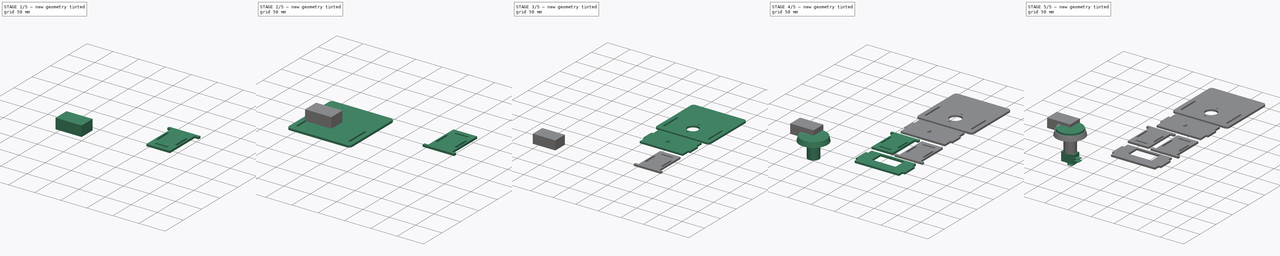
[diagram: build sequence overview — one tinted view per stage of 5, left to right]
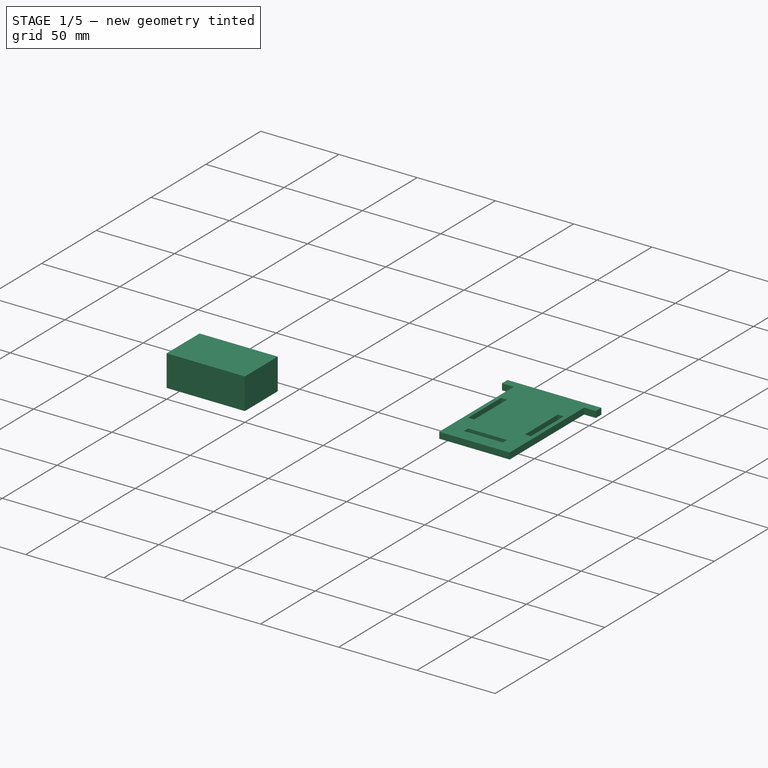
[diagram: stage 1 of 5 — iso view after this stage's code; geometry added in this stage tinted green]
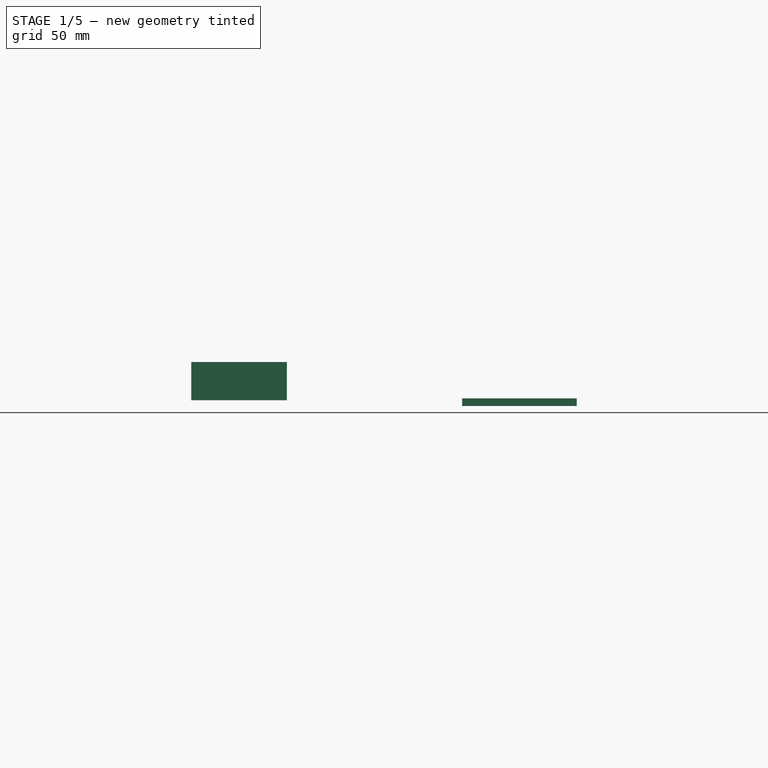
[diagram: stage 1 of 5 — front view after this stage's code; geometry added in this stage tinted green]
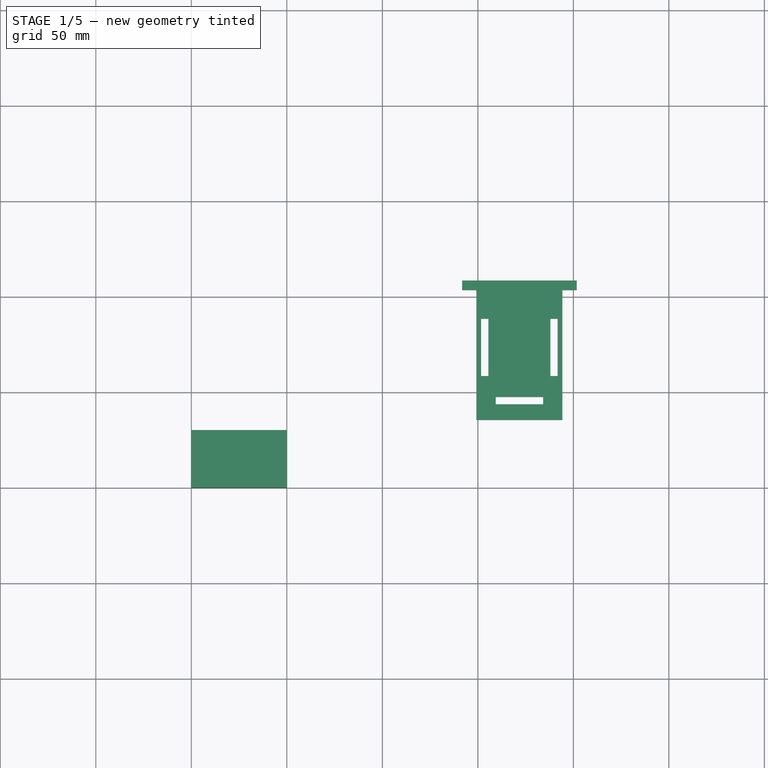
[diagram: stage 1 of 5 — top view after this stage's code; geometry added in this stage tinted green]
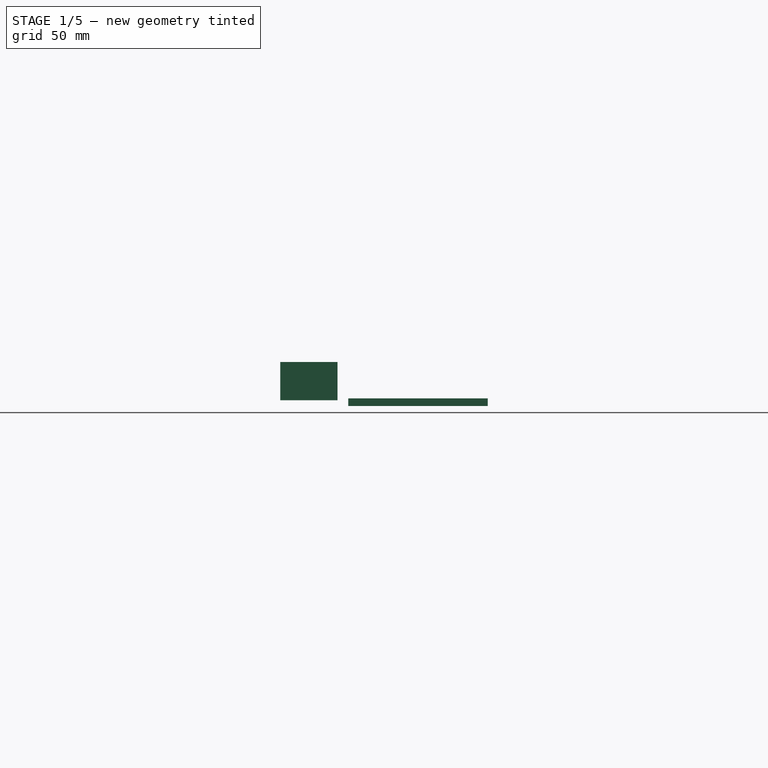
[diagram: stage 1 of 5 — right view after this stage's code; geometry added in this stage tinted green]
FCSTD DOCUMENT  (FreeCAD 0.16RUnknown)
Label: dooropener-guestbutton
License: CreativeCommons Attribution-ShareAlike
LicenseURL: http://creativecommons.org/licenses/by-sa/4.0/
objects: Sketcher::SketchObject×13, PartDesign::Pad×8, Part::FeaturePython×5, PartDesign::Pocket×4, PartDesign::Revolution×1, PartDesign::Fillet×1, Part::MultiFuse×1, Part::Box×1, Part::Feature×1
note: 48 computed .brp shape members not serialized (recipe doc carries the construction recipe); baked Part::Feature solids carry a one-line shape summary decoded from their .brp

FEATURE [Sketcher::SketchObject] Sketch006  label="side-outer"
  Placement = pos=(47.5,0,0) rot=(0.57735,0.57735,0.57735;2.0944rad)
  sketch-geometry (8):
    g0: LineSegment StartX=22.5 StartY=0 StartZ=0 EndX=22.5 EndY=-68 EndZ=0
    g1: LineSegment StartX=22.5 StartY=-68 StartZ=0 EndX=-22.5 EndY=-68 EndZ=0
    g2: LineSegment StartX=-22.5 StartY=-68 StartZ=0 EndX=-22.5 EndY=0 EndZ=0
    g3: LineSegment StartX=22.5 StartY=0 StartZ=0 EndX=30 EndY=0 EndZ=0
    g4: LineSegment StartX=30 StartY=0 StartZ=0 EndX=30 EndY=5 EndZ=0
    g5: LineSegment StartX=30 StartY=5 StartZ=0 EndX=-30 EndY=5 EndZ=0
    g6: LineSegment StartX=-30 StartY=5 StartZ=0 EndX=-30 EndY=0 EndZ=0
    g7: LineSegment StartX=-30 StartY=0 StartZ=0 EndX=-22.5 EndY=0 EndZ=0
  constraints (23):
    c: Coincident(g0,g1)
    c: Coincident(g1,g2)
    c: Horizontal(g1)
    c: Vertical(g0)
    c: Vertical(g2)
    c: DistanceY(g2,g2) = 68
    c: Symmetric(g2,g0,g-2)
    c: Coincident(g0,g3)
    c: Horizontal(g3)
    c: Coincident(g3,g4)
    c: Vertical(g4)
    c: Coincident(g4,g5)
    c: Horizontal(g5)
    c: Coincident(g5,g6)
    c: Vertical(g6)
    c: Coincident(g6,g7)
    c: Coincident(g7,g2)
    c: Horizontal(g7)
    c: Equal(g7,g3)
    c: PointOnObject(g2,g-1)
    c: DistanceY(g6,g6) = 5
    c: DistanceX(g5,g5) = 60
    c: DistanceX(g1,g1) = 45
FEATURE [PartDesign::Pad] Pad005
  Length = 4
  Length2 = 100
  Placement = pos=(47.5,0,0) rot=(0.57735,0.57735,0.57735;2.0944rad)
  Sketch = -> Sketch006
  Type = 0
FEATURE [Sketcher::SketchObject] Sketch010  label="side-holes"
  Placement = pos=(51.5,0,0) rot=(0.57735,0.57735,0.57735;2.0944rad)
  Support = -> Pad005 [Face10]
  sketch-geometry (14):
    g0: LineSegment StartX=-20 StartY=-15 StartZ=0 EndX=-16.2 EndY=-15 EndZ=0
    g1: LineSegment StartX=-16.2 StartY=-15 StartZ=0 EndX=-16.2 EndY=-45 EndZ=0
    g2: LineSegment StartX=-16.2 StartY=-45 StartZ=0 EndX=-20 EndY=-45 EndZ=0
    g3: LineSegment StartX=-20 StartY=-45 StartZ=0 EndX=-20 EndY=-15 EndZ=0
    g4: LineSegment StartX=-12.4 StartY=-56 StartZ=0 EndX=12.4 EndY=-56 EndZ=0
    g5: LineSegment StartX=12.4 StartY=-56 StartZ=0 EndX=12.4 EndY=-59.8 EndZ=0
    g6: LineSegment StartX=12.4 StartY=-59.8 StartZ=0 EndX=-12.4 EndY=-59.8 EndZ=0
    g7: LineSegment StartX=-12.4 StartY=-59.8 StartZ=0 EndX=-12.4 EndY=-56 EndZ=0
    g8: LineSegment StartX=16.2 StartY=-15 StartZ=0 EndX=20 EndY=-15 EndZ=0
    g9: LineSegment StartX=20 StartY=-15 StartZ=0 EndX=20 EndY=-45 EndZ=0
    g10: LineSegment StartX=20 StartY=-45 StartZ=0 EndX=16.2 EndY=-45 EndZ=0
    g11: LineSegment StartX=16.2 StartY=-45 StartZ=0 EndX=16.2 EndY=-15 EndZ=0
    g12: LineSegment [constr] StartX=-16.2 StartY=-45 StartZ=0 EndX=16.2 EndY=-45 EndZ=0
    g13: LineSegment [constr] StartX=-16.2 StartY=-15 StartZ=0 EndX=16.2 EndY=-15 EndZ=0
  constraints (40):
    c: Coincident(g0,g1)
    c: Coincident(g1,g2)
    c: Coincident(g2,g3)
    c: Coincident(g3,g0)
    c: Horizontal(g0)
    c: Horizontal(g2)
    c: Vertical(g1)
    c: Vertical(g3)
    c: Coincident(g4,g5)
    c: Coincident(g5,g6)
    c: Coincident(g6,g7)
    c: Coincident(g7,g4)
    c: Horizontal(g4)
    c: Horizontal(g6)
    c: Vertical(g5)
    c: Vertical(g7)
    c: DistanceY(g5,g5) = 3.8
    c: DistanceX(g6,g6) = 24.8
    c: Equal(g2,g5)
    c: DistanceY(g3,g3) = 30
    c: Symmetric(g4,g4,g-2)
    c: DistanceX(g0) = -20
    c: DistanceY(g2) = -45
    c: DistanceY(g4) = -56
    c: Coincident(g8,g9)
    c: Coincident(g9,g10)
    c: Coincident(g10,g11)
    c: Coincident(g11,g8)
    c: Horizontal(g8)
    c: Horizontal(g10)
    c: Vertical(g9)
    c: Vertical(g11)
    c: Coincident(g12,g1)
    c: Coincident(g12,g10)
    c: Horizontal(g12)
    c: Coincident(g13,g0)
    c: Coincident(g13,g8)
    c: Horizontal(g13)
    c: Equal(g8,g0)
    c: Symmetric(g8,g0,g-2)
FEATURE [PartDesign::Pocket] Pocket001
  Length = 5
  Placement = pos=(47.5,0,0) rot=(0.57735,0.57735,0.57735;2.0944rad)
  Sketch = -> Sketch010
  Type = 1
FEATURE [Part::FeaturePython] Clone  label="Clone of Pocket001"  # Draft clone (typed FeaturePython)
  Objects = -> [Pocket001]
  Placement = pos=(121.739,103.622,-3) rot=(0,0,1;0rad)
  Scale = (1,1,1)
FEATURE [Part::Box] Box  label="Cube"
  Height = 20
  Length = 30
  Placement = pos=(0,0,0) rot=(0,0,1;1.5708rad)
  Width = 50
FEATURE [Part::Feature] Fusion_cs
  shape: bbox 120.4 x 332.5 x 2e-07 mm, 0 faces, 0 solids (baked)
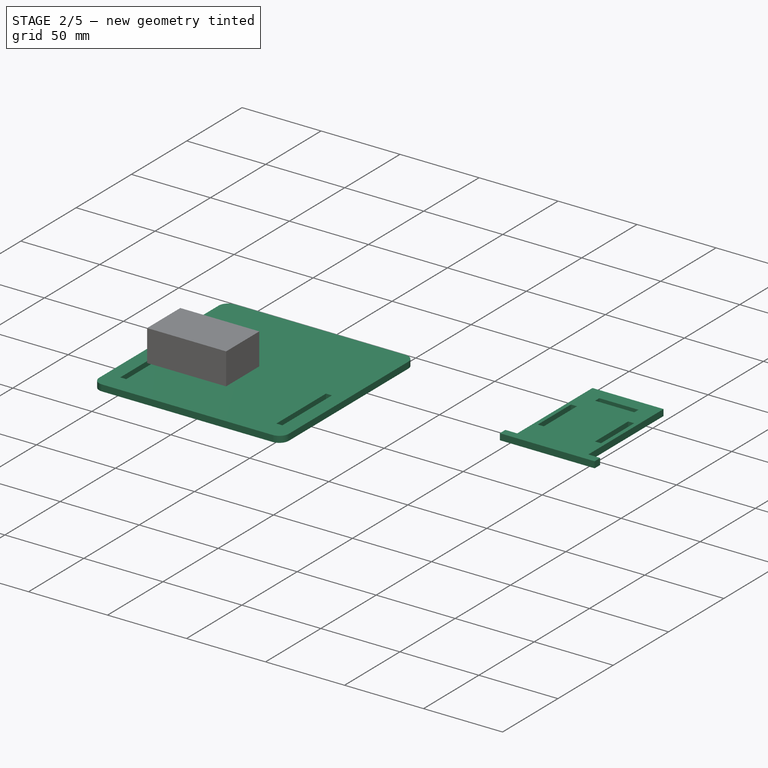
[diagram: stage 2 of 5 — iso view after this stage's code; geometry added in this stage tinted green]
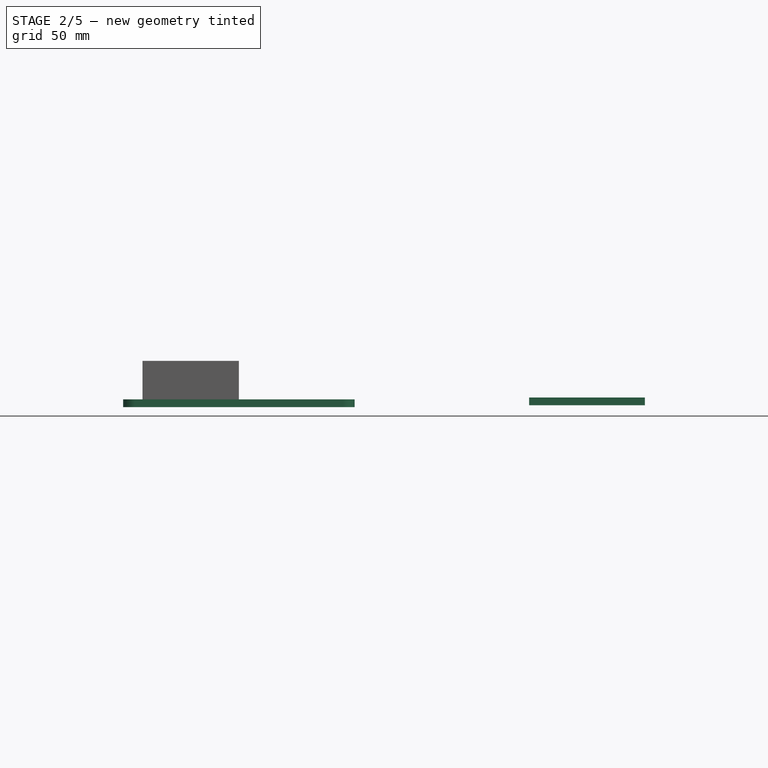
[diagram: stage 2 of 5 — front view after this stage's code; geometry added in this stage tinted green]
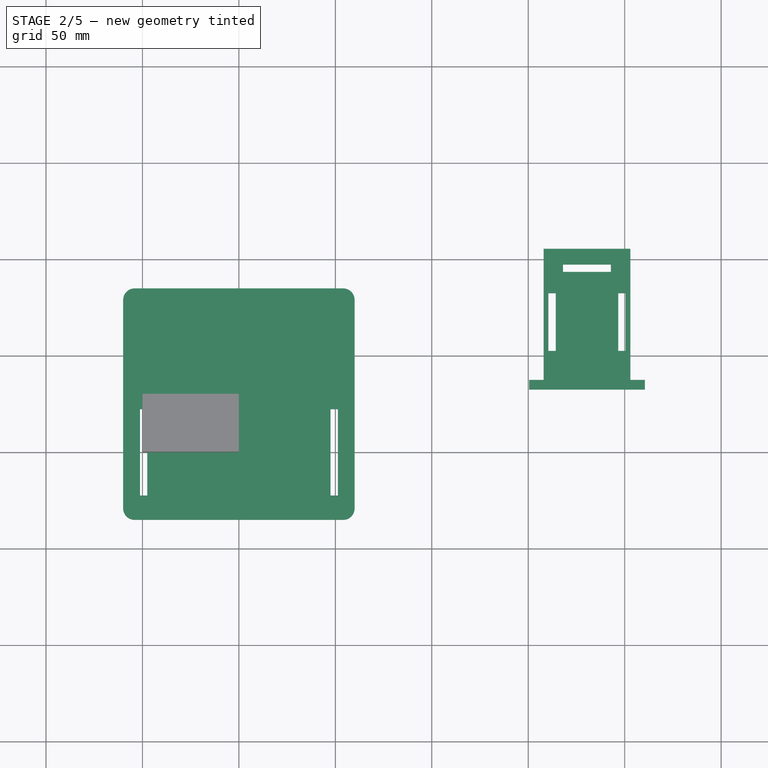
[diagram: stage 2 of 5 — top view after this stage's code; geometry added in this stage tinted green]
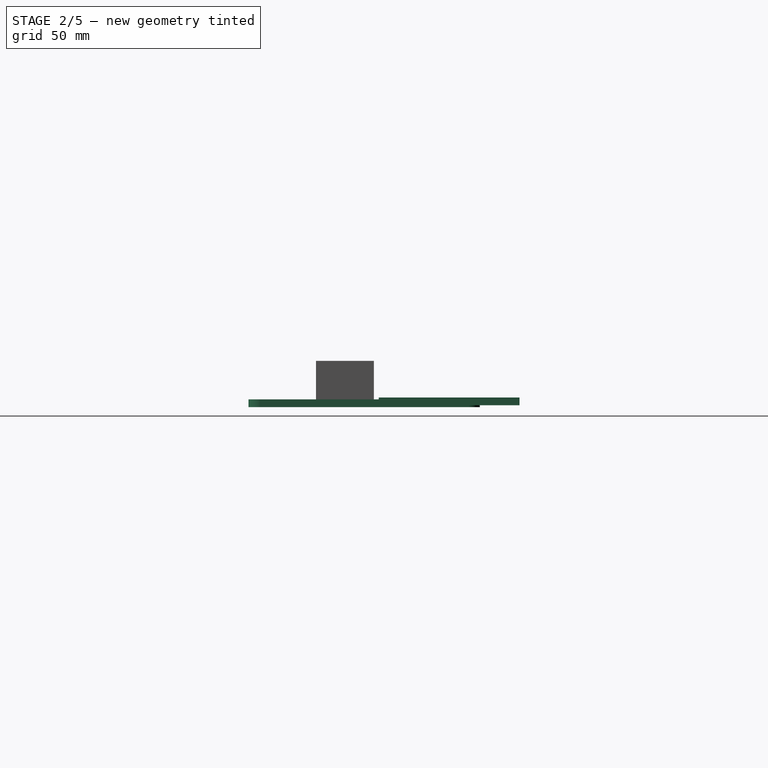
[diagram: stage 2 of 5 — right view after this stage's code; geometry added in this stage tinted green]
FEATURE [Sketcher::SketchObject] Sketch005  label="top-outer"
  sketch-geometry (4):
    g0: LineSegment StartX=-60 StartY=85 StartZ=0 EndX=60 EndY=85 EndZ=0
    g1: LineSegment StartX=60 StartY=85 StartZ=0 EndX=60 EndY=-35 EndZ=0
    g2: LineSegment StartX=60 StartY=-35 StartZ=0 EndX=-60 EndY=-35 EndZ=0
    g3: LineSegment StartX=-60 StartY=-35 StartZ=0 EndX=-60 EndY=85 EndZ=0
  constraints (12):
    c: Coincident(g0,g1)
    c: Coincident(g1,g2)
    c: Coincident(g2,g3)
    c: Coincident(g3,g0)
    c: Horizontal(g0)
    c: Horizontal(g2)
    c: Vertical(g1)
    c: Vertical(g3)
    c: Symmetric(g1,g2,g-2)
    c: DistanceX(g0,g0) = 120
    c: DistanceY(g3,g3) = 120
    c: DistanceY(g2) = -35
FEATURE [PartDesign::Pad] Pad004
  Length = 4
  Length2 = 100
  Reversed = true
  Sketch = -> Sketch005
  Type = 0
FEATURE [PartDesign::Fillet] Fillet
  Base = -> Pad004 [Edge2,Edge5,Edge8,Edge1]
  Radius = 6
FEATURE [Sketcher::SketchObject] Sketch008  label="top-holes"
  Support = -> Fillet [Face2]
  sketch-geometry (10):
    g0: LineSegment StartX=-51.3 StartY=22.4 StartZ=0 EndX=-47.5 EndY=22.4 EndZ=0
    g1: LineSegment StartX=-47.5 StartY=22.4 StartZ=0 EndX=-47.5 EndY=-22.4 EndZ=0
    g2: LineSegment StartX=-47.5 StartY=-22.4 StartZ=0 EndX=-51.3 EndY=-22.4 EndZ=0
    g3: LineSegment StartX=-51.3 StartY=-22.4 StartZ=0 EndX=-51.3 EndY=22.4 EndZ=0
    g4: LineSegment StartX=47.5 StartY=22.4 StartZ=0 EndX=51.3 EndY=22.4 EndZ=0
    g5: LineSegment StartX=51.3 StartY=22.4 StartZ=0 EndX=51.3 EndY=-22.4 EndZ=0
    g6: LineSegment StartX=51.3 StartY=-22.4 StartZ=0 EndX=47.5 EndY=-22.4 EndZ=0
    g7: LineSegment StartX=47.5 StartY=-22.4 StartZ=0 EndX=47.5 EndY=22.4 EndZ=0
    g8: LineSegment [constr] StartX=-47.5 StartY=-22.4 StartZ=0 EndX=47.5 EndY=-22.4 EndZ=0
    g9: LineSegment [constr] StartX=-47.5 StartY=22.4 StartZ=0 EndX=47.5 EndY=22.4 EndZ=0
  constraints (28):
    c: Coincident(g0,g1)
    c: Coincident(g1,g2)
    c: Coincident(g2,g3)
    c: Coincident(g3,g0)
    c: Horizontal(g0)
    c: Horizontal(g2)
    c: Vertical(g1)
    c: Vertical(g3)
    c: Coincident(g4,g5)
    c: Coincident(g5,g6)
    c: Coincident(g6,g7)
    c: Coincident(g7,g4)
    c: Horizontal(g4)
    c: Horizontal(g6)
    c: Vertical(g5)
    c: Vertical(g7)
    c: Coincident(g8,g1)
    c: Coincident(g8,g6)
    c: Horizontal(g8)
    c: Coincident(g9,g0)
    c: Coincident(g9,g4)
    c: Horizontal(g9)
    c: Equal(g4,g0)
    c: DistanceX(g8,g8) = 95
    c: DistanceX(g2,g2) = 3.8
    c: Symmetric(g1,g6,g-2)
    c: DistanceY(g1,g1) = 44.8
    c: Symmetric(g0,g1,g-1)
FEATURE [PartDesign::Pocket] Pocket
  Length = 5
  Sketch = -> Sketch008
  Type = 1
FEATURE [Part::FeaturePython] Clone004  label="Clone of Clone of Pocket001"  # Draft clone (typed FeaturePython)
  Objects = -> [Clone]
  Placement = pos=(180.456,37.553,-3) rot=(0,0,1;3.14159rad)
  Scale = (1,1,1)
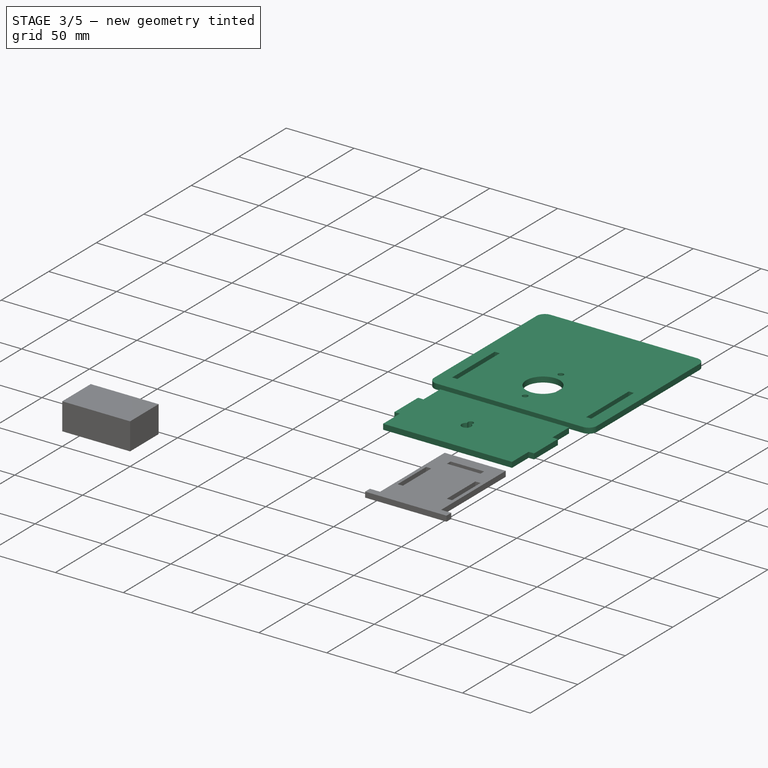
[diagram: stage 3 of 5 — iso view after this stage's code; geometry added in this stage tinted green]
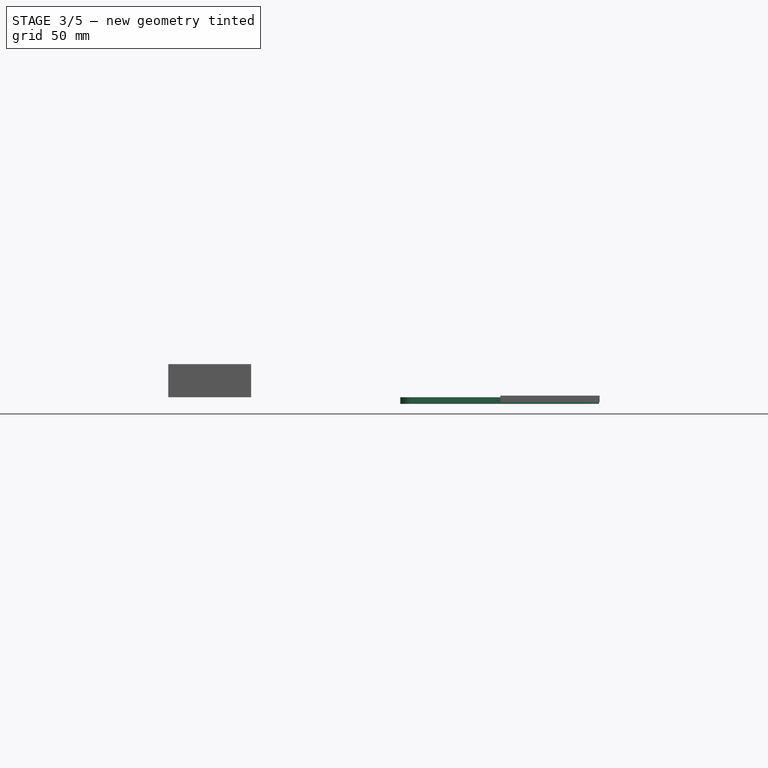
[diagram: stage 3 of 5 — front view after this stage's code; geometry added in this stage tinted green]
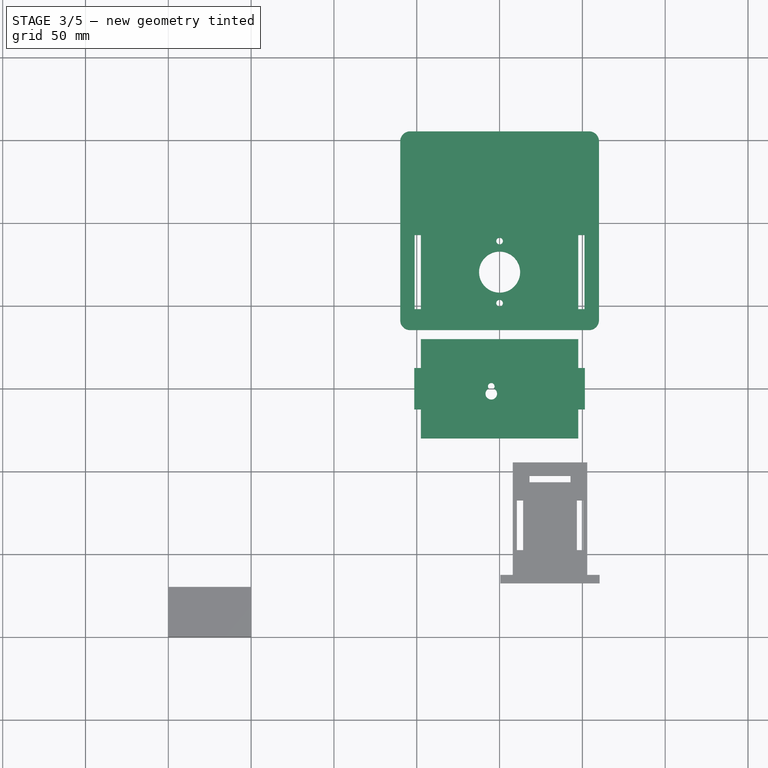
[diagram: stage 3 of 5 — top view after this stage's code; geometry added in this stage tinted green]
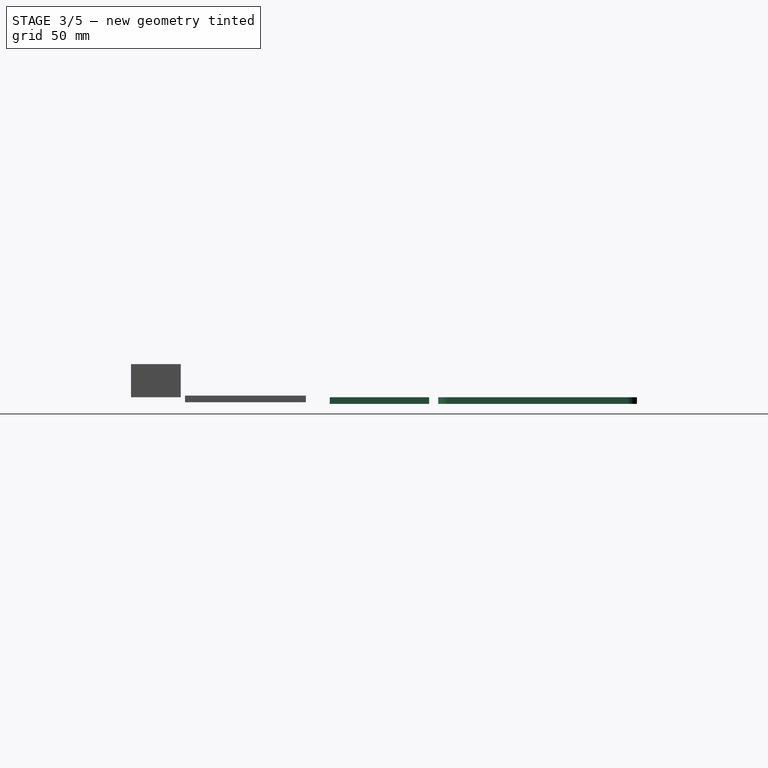
[diagram: stage 3 of 5 — right view after this stage's code; geometry added in this stage tinted green]
FEATURE [Sketcher::SketchObject] Sketch011  label="bottom-outer"
  Placement = pos=(0,0,-56) rot=(0,0,1;0rad)
  sketch-geometry (14):
    g0: LineSegment StartX=-47.5 StartY=30 StartZ=0 EndX=47.5 EndY=30 EndZ=0
    g1: LineSegment StartX=47.5 StartY=-30 StartZ=0 EndX=-47.5 EndY=-30 EndZ=0
    g2: LineSegment StartX=-51.5 StartY=12.5 StartZ=0 EndX=-47.5 EndY=12.5 EndZ=0
    g3: LineSegment [constr] StartX=-47.5 StartY=12.5 StartZ=0 EndX=-47.5 EndY=-12.5 EndZ=0
    g4: LineSegment StartX=-47.5 StartY=-12.5 StartZ=0 EndX=-51.5 EndY=-12.5 EndZ=0
    g5: LineSegment StartX=-51.5 StartY=-12.5 StartZ=0 EndX=-51.5 EndY=12.5 EndZ=0
    g6: LineSegment StartX=47.5 StartY=12.5 StartZ=0 EndX=51.5 EndY=12.5 EndZ=0
    g7: LineSegment StartX=51.5 StartY=12.5 StartZ=0 EndX=51.5 EndY=-12.5 EndZ=0
    g8: LineSegment StartX=51.5 StartY=-12.5 StartZ=0 EndX=47.5 EndY=-12.5 EndZ=0
    g9: LineSegment [constr] StartX=47.5 StartY=-12.5 StartZ=0 EndX=47.5 EndY=12.5 EndZ=0
    g10: LineSegment StartX=-47.5 StartY=30 StartZ=0 EndX=-47.5 EndY=12.5 EndZ=0
    g11: LineSegment StartX=-47.5 StartY=-12.5 StartZ=0 EndX=-47.5 EndY=-30 EndZ=0
    g12: LineSegment StartX=47.5 StartY=12.5 StartZ=0 EndX=47.5 EndY=30 EndZ=0
    g13: LineSegment StartX=47.5 StartY=-30 StartZ=0 EndX=47.5 EndY=-12.5 EndZ=0
  constraints (40):
    c: Horizontal(g0)
    c: Horizontal(g1)
    c: Coincident(g2,g3)
    c: Coincident(g3,g4)
    c: Coincident(g4,g5)
    c: Coincident(g5,g2)
    c: Horizontal(g2)
    c: Horizontal(g4)
    c: Vertical(g3)
    c: Vertical(g5)
    c: Coincident(g6,g7)
    c: Coincident(g7,g8)
    c: Coincident(g8,g9)
    c: Coincident(g9,g6)
    c: Horizontal(g6)
    c: Horizontal(g8)
    c: Vertical(g7)
    c: Vertical(g9)
    c: Coincident(g10,g0)
    c: Coincident(g10,g2)
    c: Vertical(g10)
    c: Coincident(g11,g3)
    c: Coincident(g11,g1)
    c: Vertical(g11)
    c: Equal(g10,g11)
    c: Coincident(g12,g6)
    c: Coincident(g12,g0)
    c: Coincident(g13,g1)
    c: Coincident(g13,g8)
    c: Equal(g13,g12)
    c: Vertical(g12)
    c: Vertical(g13)
    c: Equal(g2,g6)
    c: DistanceX(g6,g6) = 4
    c: Symmetric(g0,g0,g-2)
    c: DistanceX(g0,g0) = 95
    c: DistanceY(g5,g5) = 25
    c: Symmetric(g3,g2,g-1)
    c: Equal(g7,g5)
    c: DistanceY(g1,g0) = 60
FEATURE [PartDesign::Pad] Pad006
  Length = 4
  Length2 = 100
  Placement = pos=(0,0,-56) rot=(0,0,1;0rad)
  Reversed = true
  Sketch = -> Sketch011
  Type = 0
FEATURE [Sketcher::SketchObject] Sketch012  label="bottom-hanghole"
  Placement = pos=(0,0,-56) rot=(0,0,1;0rad)
  Support = -> Pad006 [Face13]
  sketch-geometry (4):
    g0: ArcOfCircle CenterX=-5 CenterY=-3 CenterZ=0 NormalX=0 NormalY=0 NormalZ=1 Radius=3.5 StartAngle=2.01371 EndAngle=7.41107
    g1: ArcOfCircle CenterX=-5 CenterY=1.48515 CenterZ=0 NormalX=0 NormalY=0 NormalZ=1 Radius=2 StartAngle=5.56045 EndAngle=10.1475
    g2: LineSegment [constr] StartX=-6.5 StartY=0.162278 StartZ=0 EndX=-3.5 EndY=0.162278 EndZ=0
    g3: LineSegment [constr] StartX=-5 StartY=1.48515 StartZ=0 EndX=-5 EndY=-3 EndZ=0
  constraints (12):
    c: Coincident(g0,g1)
    c: Coincident(g0,g1)
    c: Coincident(g2,g0)
    c: Coincident(g2,g0)
    c: DistanceX(g2,g2) = 3
    c: Radius(g1) = 2
    c: Radius(g0) = 3.5
    c: DistanceY(g0) = -3
    c: Vertical(g3)
    c: Coincident(g1,g3)
    c: Coincident(g3,g0)
    c: DistanceX(g-1,g0) = -5
FEATURE [PartDesign::Pocket] Pocket002
  Length = 5
  Placement = pos=(0,0,-56) rot=(0,0,1;0rad)
  Sketch = -> Sketch012
  Type = 1
FEATURE [Sketcher::SketchObject] Sketch013  label="top-buttonh"
  Support = -> Pocket [Face2]
  sketch-geometry (5):
    g0: Circle CenterX=0 CenterY=18.75 CenterZ=0 NormalX=0 NormalY=0 NormalZ=1 Radius=2
    g1: Circle CenterX=0 CenterY=0 CenterZ=0 NormalX=0 NormalY=0 NormalZ=1 Radius=12.4
    g2: Circle CenterX=0 CenterY=-18.75 CenterZ=0 NormalX=0 NormalY=0 NormalZ=1 Radius=2
    g3: LineSegment [constr] StartX=0 StartY=-18.75 StartZ=0 EndX=0 EndY=0 EndZ=0
    g4: LineSegment [constr] StartX=0 StartY=18.75 StartZ=0 EndX=0 EndY=0 EndZ=0
  constraints (14):
    c: PointOnObject(g0,g-2)
    c: PointOnObject(g2,g-2)
    c: Vertical(g3)
    c: Coincident(g4,g0)
    c: Vertical(g4)
    c: Coincident(g1,g3)
    c: Coincident(g1,g4)
    c: Coincident(g2,g3)
    c: Equal(g3,g4)
    c: DistanceY(g-1,g1) = 0
    c: Equal(g0,g2)
    c: DistanceY(g4,g4) = 18.75
    c: Radius(g0) = 2
    c: Radius(g1) = 12.4
FEATURE [PartDesign::Pocket] Pocket003
  Length = 5
  Sketch = -> Sketch013
  Type = 1
FEATURE [Part::FeaturePython] Clone002  label="Clone of Pocket002"  # Draft clone (typed FeaturePython)
  Objects = -> [Pocket002]
  Placement = pos=(150,150,0) rot=(0,0,1;0rad)
  Scale = (1,1,1)
FEATURE [Part::FeaturePython] Clone003  label="Clone of Pocket003"  # Draft clone (typed FeaturePython)
  Objects = -> [Pocket003]
  Placement = pos=(150.021,220.452,0) rot=(0,0,1;0rad)
  Scale = (1,1,1)
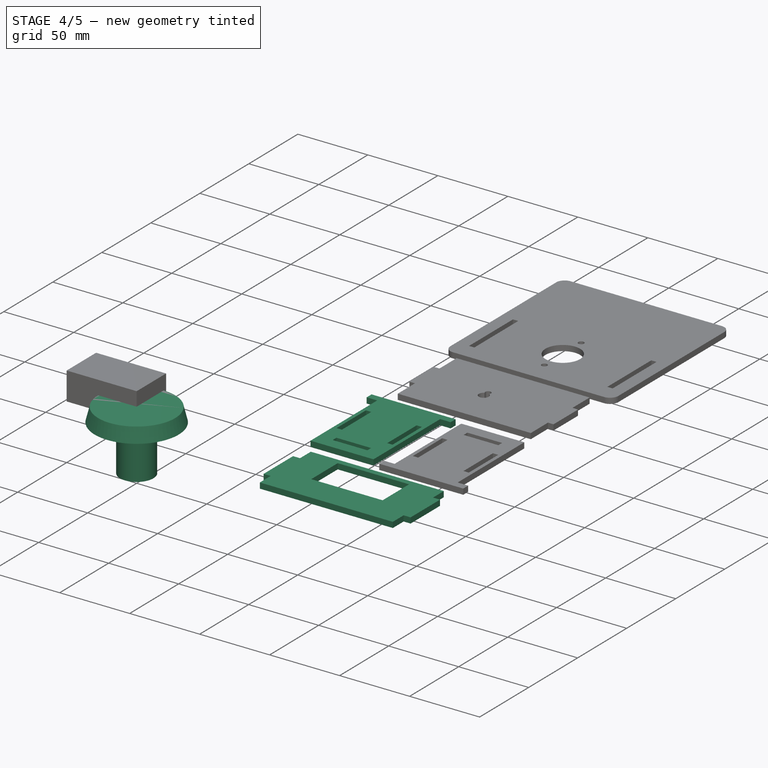
[diagram: stage 4 of 5 — iso view after this stage's code; geometry added in this stage tinted green]
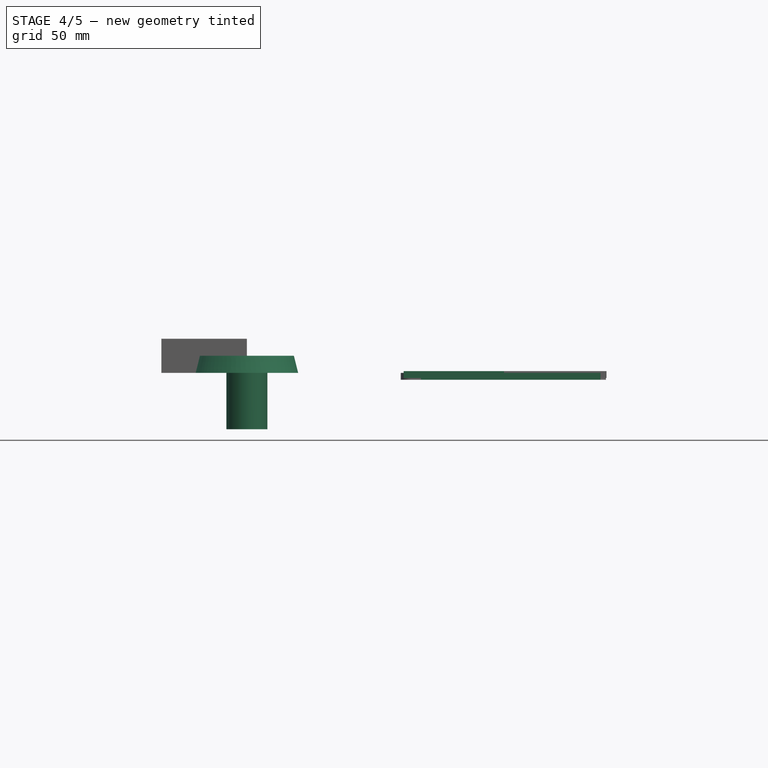
[diagram: stage 4 of 5 — front view after this stage's code; geometry added in this stage tinted green]
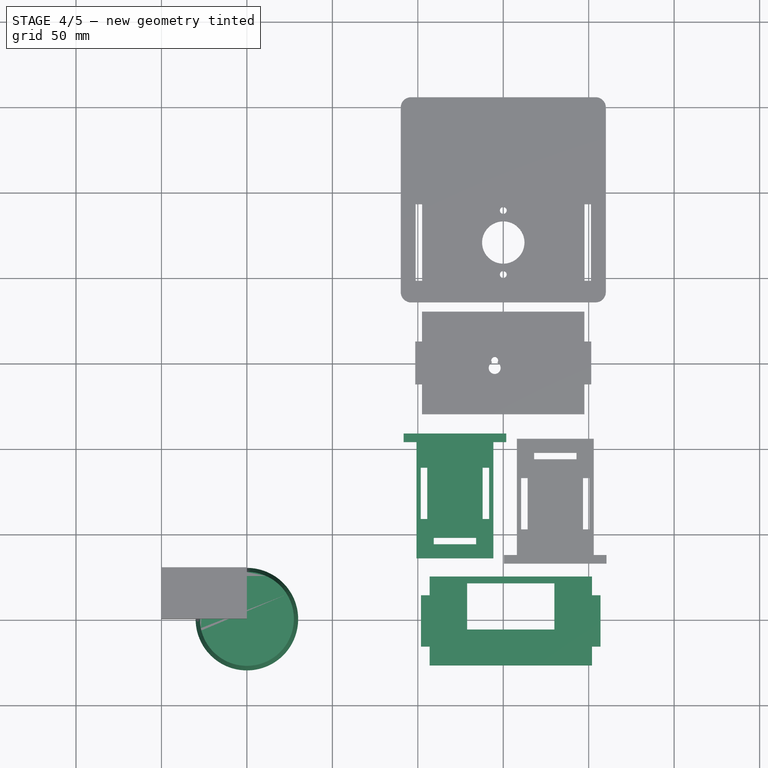
[diagram: stage 4 of 5 — top view after this stage's code; geometry added in this stage tinted green]
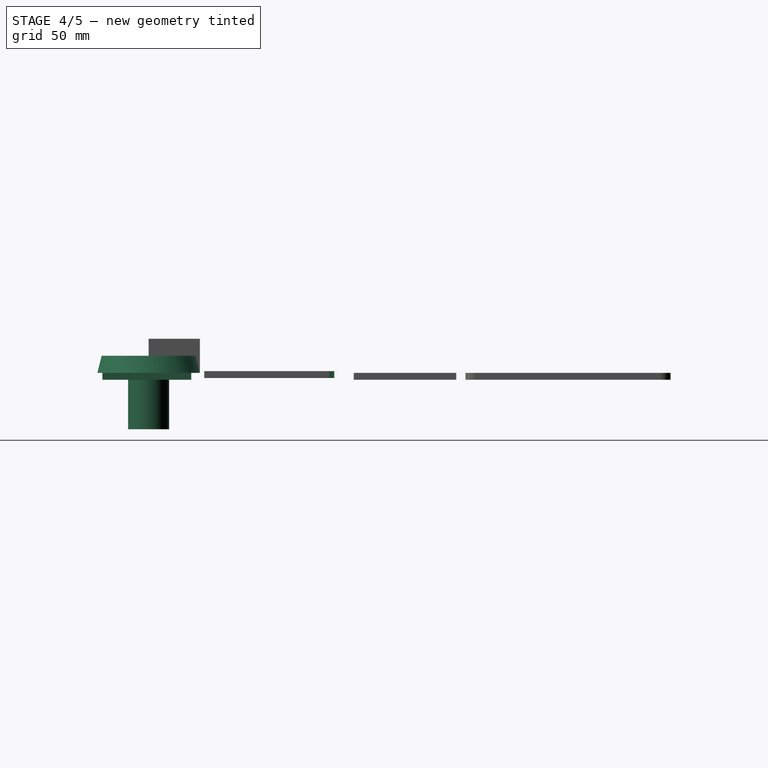
[diagram: stage 4 of 5 — right view after this stage's code; geometry added in this stage tinted green]
FEATURE [Sketcher::SketchObject] Sketch
  Placement = pos=(0,0,0) rot=(-1,0,0;4.71239rad)
  sketch-geometry (6):
    g0: LineSegment StartX=12 StartY=-33 StartZ=0 EndX=12 EndY=0 EndZ=0
    g1: LineSegment StartX=12 StartY=0 StartZ=0 EndX=30 EndY=0 EndZ=0
    g2: LineSegment StartX=30 StartY=0 StartZ=0 EndX=27.5 EndY=10 EndZ=0
    g3: LineSegment StartX=27.5 StartY=10 StartZ=0 EndX=0 EndY=10 EndZ=0
    g4: LineSegment StartX=0 StartY=10 StartZ=0 EndX=0 EndY=-33 EndZ=0
    g5: LineSegment StartX=12 StartY=-33 StartZ=0 EndX=0 EndY=-33 EndZ=0
  constraints (18):
    c: PointOnObject(g0,g-1)
    c: Vertical(g0)
    c: Coincident(g0,g1)
    c: Coincident(g1,g2)
    c: Horizontal(g1)
    c: Coincident(g3,g2)
    c: Horizontal(g3)
    c: Coincident(g4,g3)
    c: Vertical(g4)
    c: Coincident(g5,g4)
    c: Coincident(g0,g5)
    c: Horizontal(g5)
    c: PointOnObject(g-1,g4)
    c: DistanceX(g0) = 12
    c: DistanceY(g0,g0) = 33
    c: DistanceY(g2,g2) = 10
    c: DistanceX(g1) = 30
    c: DistanceX(g3,g3) = 27.5
FEATURE [PartDesign::Revolution] Revolution
  Angle = 360
  Axis = (0,0,1)
  Base = (0,0,0)
  Placement = pos=(0,0,0) rot=(-1,0,0;4.71239rad)
  ReferenceAxis = -> Sketch [V_Axis]
  Reversed = true
  Sketch = -> Sketch
FEATURE [Sketcher::SketchObject] Sketch014  label="backside-outer"
  Placement = pos=(0,-20,0) rot=(-1,0,0;4.71239rad)
  sketch-geometry (18):
    g0: LineSegment StartX=-47.5 StartY=-4 StartZ=0 EndX=47.5 EndY=-4 EndZ=0
    g1: LineSegment StartX=47.5 StartY=-4 StartZ=0 EndX=47.5 EndY=-15 EndZ=0
    g2: LineSegment StartX=47.5 StartY=-56 StartZ=0 EndX=-47.5 EndY=-56 EndZ=0
    g3: LineSegment StartX=-47.5 StartY=-56 StartZ=0 EndX=-47.5 EndY=-45 EndZ=0
    g4: LineSegment StartX=47.5 StartY=-15 StartZ=0 EndX=52.5 EndY=-15 EndZ=0
    g5: LineSegment StartX=52.5 StartY=-15 StartZ=0 EndX=52.5 EndY=-45 EndZ=0
    g6: LineSegment StartX=52.5 StartY=-45 StartZ=0 EndX=47.5 EndY=-45 EndZ=0
    g7: LineSegment StartX=47.5 StartY=-45 StartZ=0 EndX=47.5 EndY=-56 EndZ=0
    g8: LineSegment [constr] StartX=47.5 StartY=-15 StartZ=0 EndX=47.5 EndY=-45 EndZ=0
    g9: LineSegment StartX=-47.5 StartY=-15 StartZ=0 EndX=-52.5 EndY=-15 EndZ=0
    g10: LineSegment StartX=-52.5 StartY=-15 StartZ=0 EndX=-52.5 EndY=-45 EndZ=0
    g11: LineSegment StartX=-52.5 StartY=-45 StartZ=0 EndX=-47.5 EndY=-45 EndZ=0
    g12: LineSegment StartX=-47.5 StartY=-15 StartZ=0 EndX=-47.5 EndY=-4 EndZ=0
    g13: LineSegment [constr] StartX=-47.5 StartY=-15 StartZ=0 EndX=-47.5 EndY=-45 EndZ=0
    g14: LineSegment StartX=-25.5 StartY=-8 StartZ=0 EndX=25.5 EndY=-8 EndZ=0
    g15: LineSegment StartX=25.5 StartY=-8 StartZ=0 EndX=25.5 EndY=-35 EndZ=0
    g16: LineSegment StartX=25.5 StartY=-35 StartZ=0 EndX=-25.5 EndY=-35 EndZ=0
    g17: LineSegment StartX=-25.5 StartY=-35 StartZ=0 EndX=-25.5 EndY=-8 EndZ=0
  constraints (52):
    c: Coincident(g0,g1)
    c: Coincident(g7,g2)
    c: Coincident(g2,g3)
    c: Coincident(g12,g0)
    c: Horizontal(g0)
    c: Horizontal(g2)
    c: Vertical(g1)
    c: Vertical(g3)
    c: Horizontal(g4)
    c: Coincident(g4,g5)
    c: Vertical(g5)
    c: Coincident(g5,g6)
    c: Horizontal(g6)
    c: Coincident(g1,g4)
    c: Coincident(g7,g6)
    c: Coincident(g8,g1)
    c: Coincident(g8,g6)
    c: Vertical(g8)
    c: Horizontal(g9)
    c: Coincident(g9,g10)
    c: Vertical(g10)
    c: Coincident(g10,g11)
    c: Horizontal(g11)
    c: Coincident(g3,g11)
    c: Coincident(g12,g9)
    c: Coincident(g13,g9)
    c: Coincident(g13,g3)
    c: Vertical(g13)
    c: Equal(g8,g13)
    c: Equal(g12,g1)
    c: Vertical(g7)
    c: Vertical(g12)
    c: DistanceY(g5,g5) = 30
    c: DistanceY(g0) = -4
    c: DistanceX(g11,g11) = 5
    c: Symmetric(g0,g0,g-2)
    c: DistanceX(g0,g0) = 95
    c: DistanceY(g2) = -56
    c: Equal(g11,g6)
    c: DistanceY(g5) = -45
    c: Coincident(g14,g15)
    c: Coincident(g15,g16)
    c: Coincident(g16,g17)
    c: Coincident(g17,g14)
    c: Horizontal(g14)
    c: Horizontal(g16)
    c: Vertical(g15)
    c: Vertical(g17)
    c: Symmetric(g15,g16,g-2)
    c: DistanceX(g16,g16) = 51
    c: DistanceY(g17,g17) = 27
    c: DistanceY(g14,g0) = 4
FEATURE [PartDesign::Pad] Pad007
  Length = 4
  Length2 = 100
  Placement = pos=(0,-20,0) rot=(-1,0,0;4.71239rad)
  Reversed = true
  Sketch = -> Sketch014
  Type = 0
FEATURE [Part::FeaturePython] Clone001  label="Clone of Pad007"  # Draft clone (typed FeaturePython)
  Objects = -> [Pad007]
  Placement = pos=(154.404,28.9755,0) rot=(0,0,1;0rad)
  Scale = (1,1,1)
FEATURE [Part::MultiFuse] Fusion
  Shapes = -> [Clone,Clone003,Clone001,Clone004,Clone002]
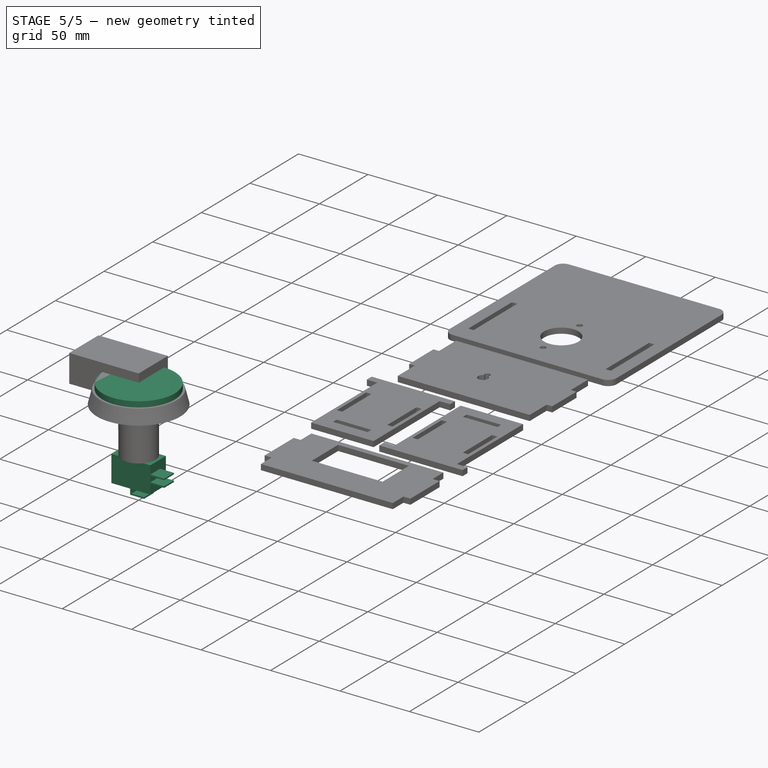
[diagram: stage 5 of 5 — iso view after this stage's code; geometry added in this stage tinted green]
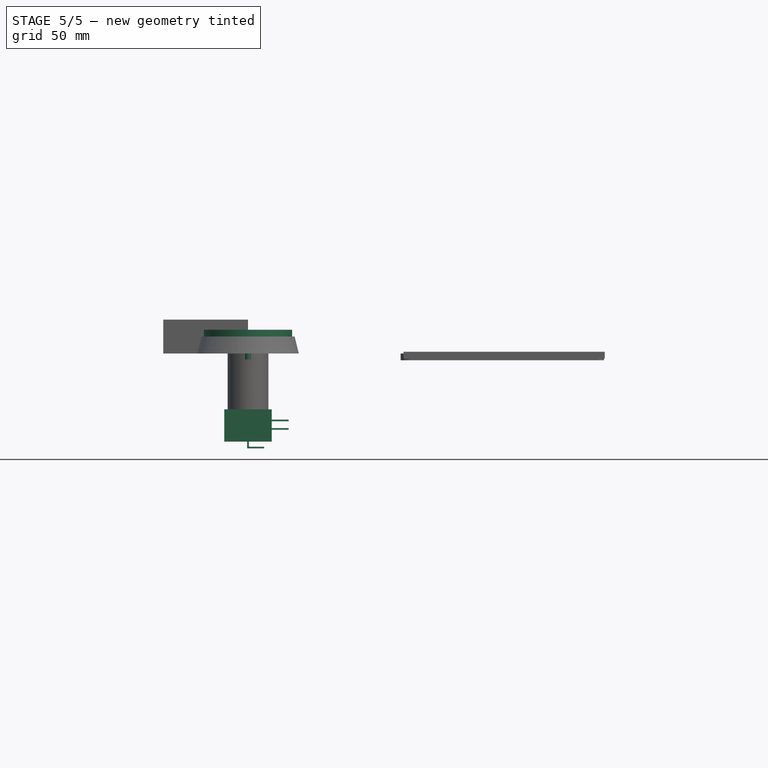
[diagram: stage 5 of 5 — front view after this stage's code; geometry added in this stage tinted green]
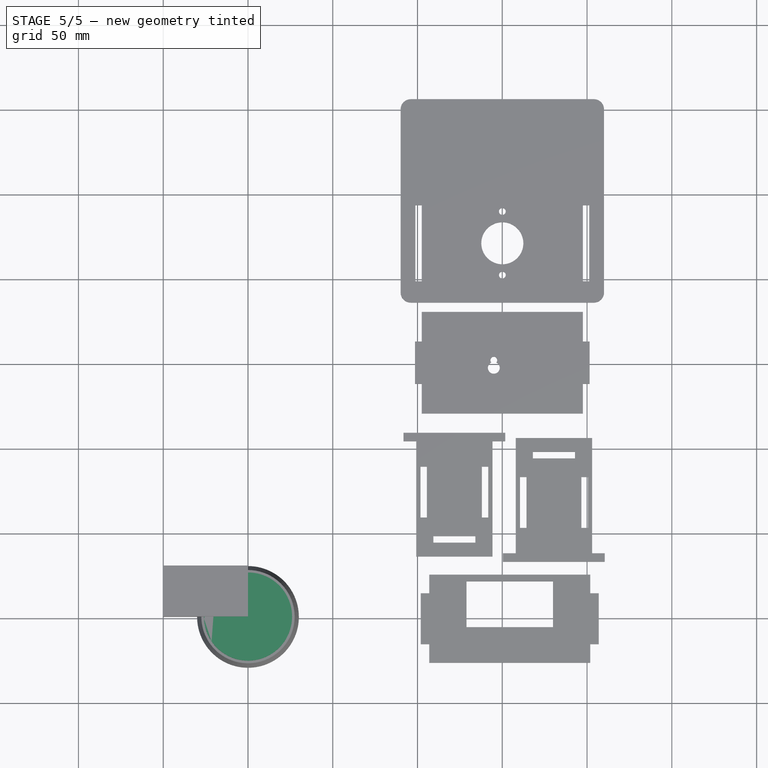
[diagram: stage 5 of 5 — top view after this stage's code; geometry added in this stage tinted green]
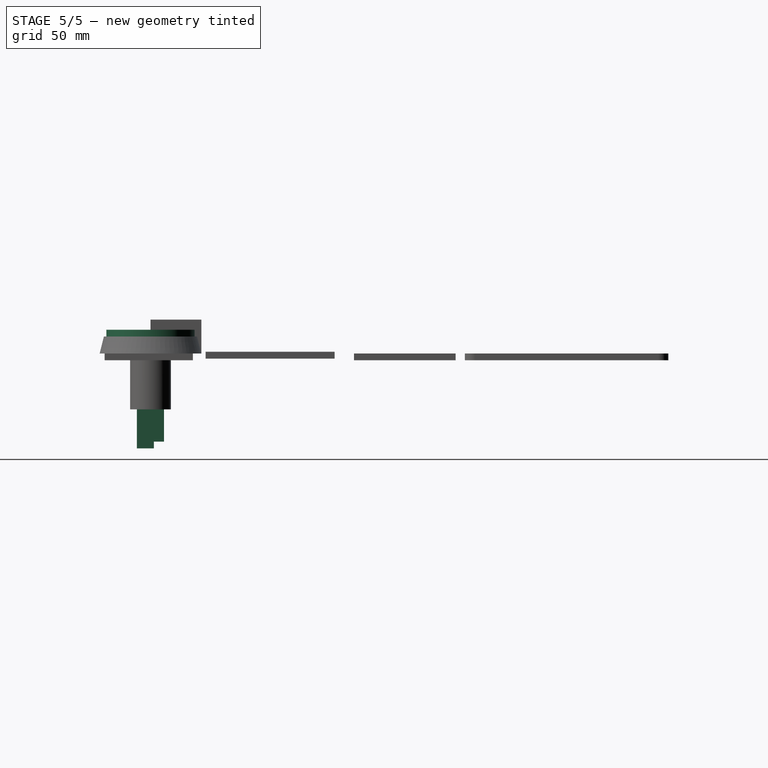
[diagram: stage 5 of 5 — right view after this stage's code; geometry added in this stage tinted green]
FEATURE [Sketcher::SketchObject] Sketch001
  Placement = pos=(0,0,10) rot=(0,0,1;3.14159rad)
  Support = -> Revolution [Face4]
  sketch-geometry (1):
    g0: Circle CenterX=0 CenterY=0 CenterZ=0 NormalX=0 NormalY=0 NormalZ=1 Radius=26
  constraints (2):
    c: Coincident(g0,g-1)
    c: Radius(g0) = 26
FEATURE [PartDesign::Pad] Pad
  Length = 4
  Length2 = 1
  Placement = pos=(0,0,0) rot=(-1,0,0;4.71239rad)
  Sketch = -> Sketch001
  Type = 0
FEATURE [Sketcher::SketchObject] Sketch002
  Placement = pos=(0,0,-33) rot=(1,0,0;3.14159rad)
  Support = -> Pad [Face2]
  sketch-geometry (4):
    g0: LineSegment StartX=-14 StartY=8 StartZ=0 EndX=14 EndY=8 EndZ=0
    g1: LineSegment StartX=14 StartY=8 StartZ=0 EndX=14 EndY=-8 EndZ=0
    g2: LineSegment StartX=14 StartY=-8 StartZ=0 EndX=-14 EndY=-8 EndZ=0
    g3: LineSegment StartX=-14 StartY=-8 StartZ=0 EndX=-14 EndY=8 EndZ=0
  constraints (12):
    c: Coincident(g0,g1)
    c: Coincident(g1,g2)
    c: Coincident(g2,g3)
    c: Coincident(g3,g0)
    c: Horizontal(g0)
    c: Horizontal(g2)
    c: Vertical(g1)
    c: Vertical(g3)
    c: Symmetric(g1,g0,g-1)
    c: DistanceX(g2,g2) = 28
    c: DistanceY(g3,g3) = 16
    c: Symmetric(g2,g1,g-2)
FEATURE [PartDesign::Pad] Pad001
  Length = 19
  Length2 = 100
  Placement = pos=(0,0,0) rot=(-1,0,0;4.71239rad)
  Sketch = -> Sketch002
  Type = 0
FEATURE [Sketcher::SketchObject] Sketch003
  Placement = pos=(0,0,0) rot=(1,0,0;3.14159rad)
  Support = -> Pad001 [Face1]
  sketch-geometry (3):
    g0: Circle [constr] CenterX=0 CenterY=0 CenterZ=0 NormalX=0 NormalY=0 NormalZ=1 Radius=18.75
    g1: Circle CenterX=0 CenterY=18.75 CenterZ=0 NormalX=0 NormalY=0 NormalZ=1 Radius=1.75
    g2: Circle CenterX=0 CenterY=-18.75 CenterZ=0 NormalX=0 NormalY=0 NormalZ=1 Radius=1.75
  constraints (8):
    c: Radius(g0) = 18.75
    c: Coincident(g0,g-1)
    c: PointOnObject(g1,g-2)
    c: PointOnObject(g2,g-2)
    c: PointOnObject(g2,g0)
    c: PointOnObject(g1,g0)
    c: Radius(g1) = 1.75
    c: Equal(g1,g2)
FEATURE [PartDesign::Pad] Pad002
  Length = 3.5
  Length2 = 100
  Placement = pos=(0,0,0) rot=(-1,0,0;4.71239rad)
  Sketch = -> Sketch003
  Type = 0
FEATURE [Sketcher::SketchObject] Sketch004
  ExternalGeometry = -> [Pad002]
  Placement = pos=(0,-8,0) rot=(1,0,0;1.5708rad)
  Support = -> Pad002 [Face17]
  sketch-geometry (16):
    g0: LineSegment StartX=14 StartY=-39 StartZ=0 EndX=24 EndY=-39 EndZ=0
    g1: LineSegment StartX=24 StartY=-39 StartZ=0 EndX=24 EndY=-40 EndZ=0
    g2: LineSegment StartX=24 StartY=-40 StartZ=0 EndX=14 EndY=-40 EndZ=0
    g3: LineSegment StartX=14 StartY=-40 StartZ=0 EndX=14 EndY=-39 EndZ=0
    g4: LineSegment StartX=14 StartY=-44 StartZ=0 EndX=24 EndY=-44 EndZ=0
    g5: LineSegment StartX=24 StartY=-44 StartZ=0 EndX=24 EndY=-45 EndZ=0
    g6: LineSegment StartX=24 StartY=-45 StartZ=0 EndX=14 EndY=-45 EndZ=0
    g7: LineSegment StartX=14 StartY=-45 StartZ=0 EndX=14 EndY=-44 EndZ=0
    g8: LineSegment [constr] StartX=14 StartY=-40 StartZ=0 EndX=14 EndY=-44 EndZ=0
    g9: LineSegment StartX=-0.5 StartY=-52 StartZ=0 EndX=-0.5 EndY=-56 EndZ=0
    g10: LineSegment StartX=-0.5 StartY=-56 StartZ=0 EndX=9.5 EndY=-56 EndZ=0
    g11: LineSegment StartX=9.5 StartY=-56 StartZ=0 EndX=9.5 EndY=-55 EndZ=0
    g12: LineSegment StartX=9.5 StartY=-55 StartZ=0 EndX=0.5 EndY=-55 EndZ=0
    g13: LineSegment StartX=0.5 StartY=-55 StartZ=0 EndX=0.5 EndY=-52 EndZ=0
    g14: LineSegment StartX=0.5 StartY=-52 StartZ=0 EndX=-0.5 EndY=-52 EndZ=0
    g15: LineSegment [constr] StartX=14 StartY=-39 StartZ=0 EndX=14 EndY=-33 EndZ=0
  constraints (46):
    c: Coincident(g0,g1)
    c: Coincident(g1,g2)
    c: Coincident(g2,g3)
    c: Coincident(g3,g0)
    c: Horizontal(g0)
    c: Horizontal(g2)
    c: Vertical(g1)
    c: Vertical(g3)
    c: Coincident(g4,g5)
    c: Coincident(g5,g6)
    c: Coincident(g6,g7)
    c: Coincident(g7,g4)
    c: Horizontal(g4)
    c: Horizontal(g6)
    c: Vertical(g5)
    c: Vertical(g7)
    c: Equal(g4,g2)
    c: Coincident(g8,g4)
    c: Vertical(g8)
    c: Coincident(g2,g8)
    c: DistanceX(g0,g0) = 10
    c: DistanceY(g8,g8) = 4
    c: Equal(g7,g3)
    c: DistanceY(g3,g3) = 1
    c: Vertical(g9)
    c: Coincident(g9,g10)
    c: Horizontal(g10)
    c: Coincident(g10,g11)
    c: Vertical(g11)
    c: Coincident(g11,g12)
    c: Horizontal(g12)
    c: Coincident(g12,g13)
    c: Vertical(g13)
    c: Coincident(g13,g14)
    c: Coincident(g14,g9)
    c: Horizontal(g14)
    c: Equal(g14,g11)
    c: Equal(g11,g5)
    c: Symmetric(g9,g13,g-2)
    c: DistanceY(g9,g9) = 4
    c: DistanceX(g10,g10) = 10
    c: Coincident(g15,g0)
    c: Vertical(g15)
    c: DistanceY(g15,g15) = 6
    c: DistanceY(g13,g-3) = 0
    c: Coincident(g15,g-3)
FEATURE [PartDesign::Pad] Pad003  label="button[step]"
  Length = 10
  Length2 = 100
  Placement = pos=(0,0,0) rot=(-1,0,0;4.71239rad)
  Reversed = true
  Sketch = -> Sketch004
  Type = 0
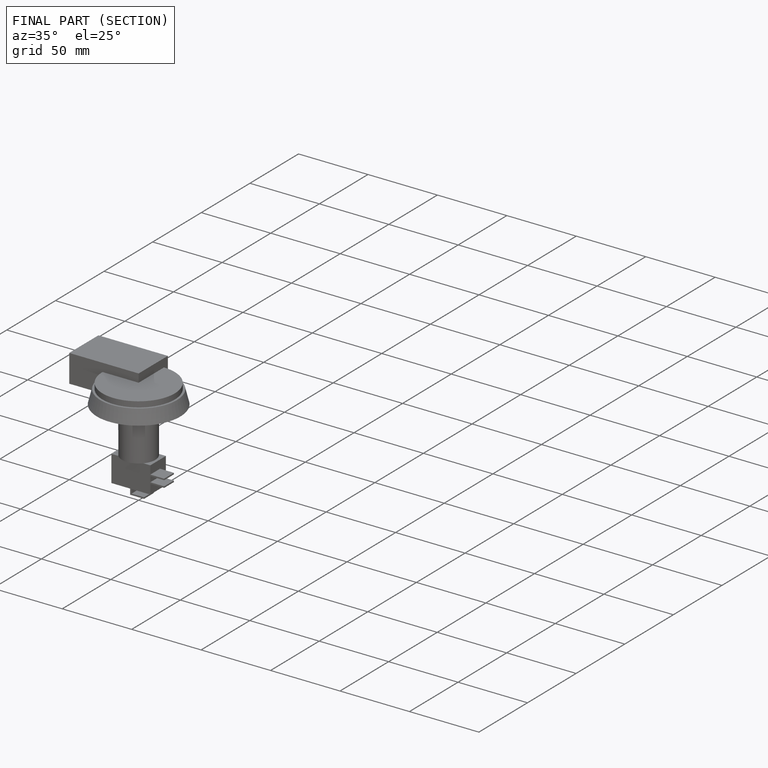
[diagram: finished part — half-section view (interior)]
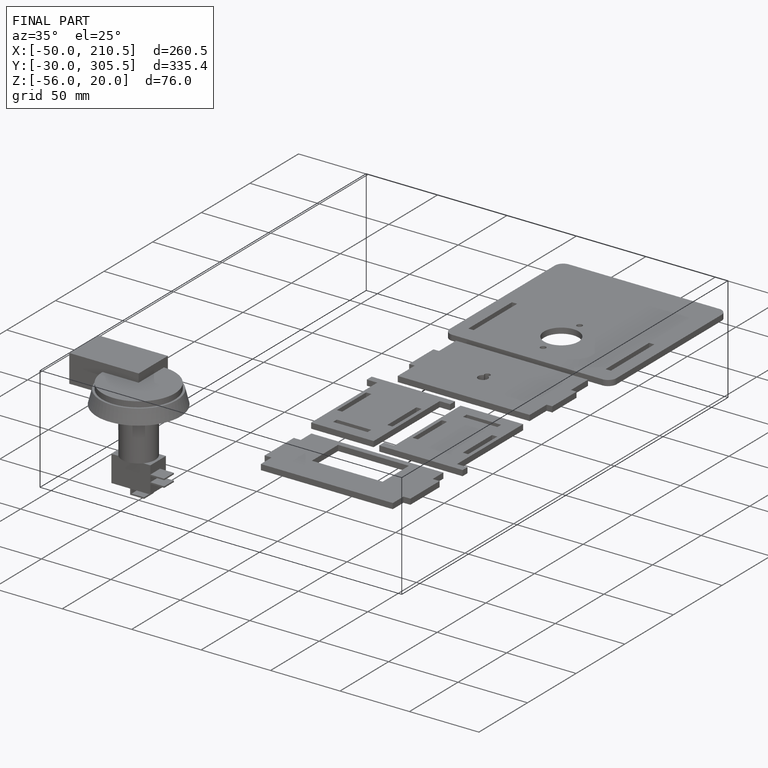
[diagram: finished part — iso view with bounding-box wireframe]
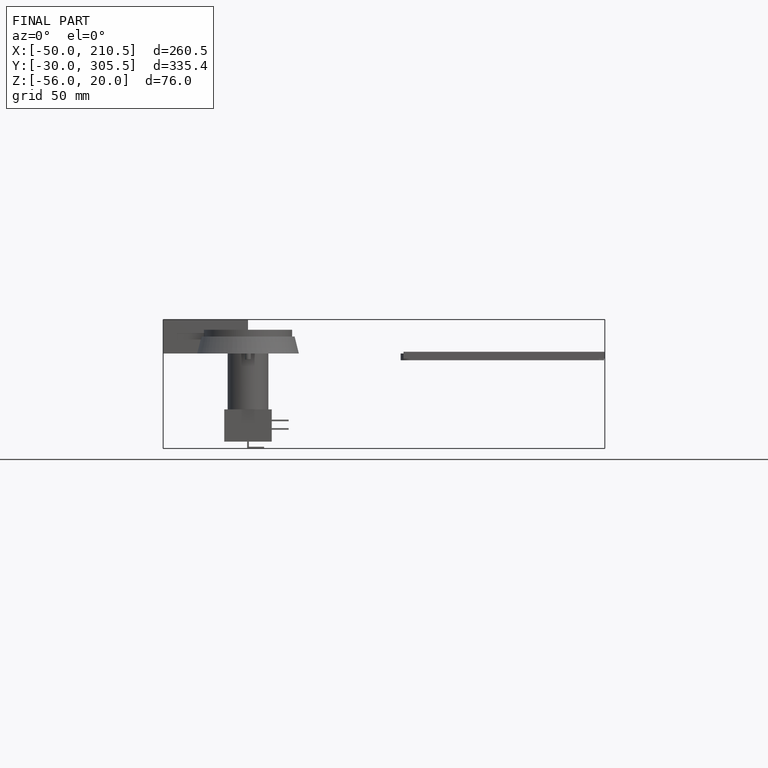
[diagram: finished part — front view with bounding-box wireframe]
